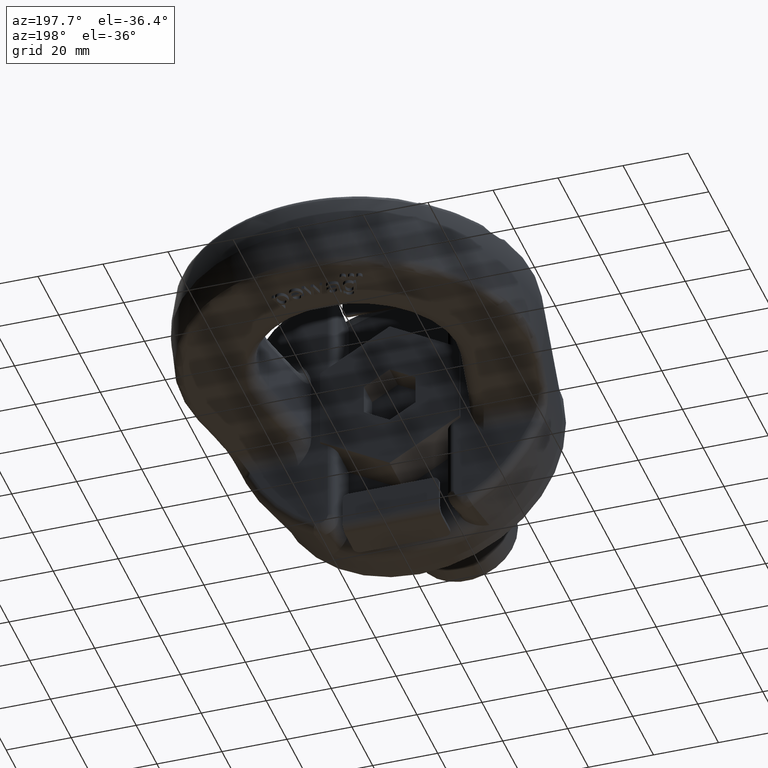
[diagram: clean part render]
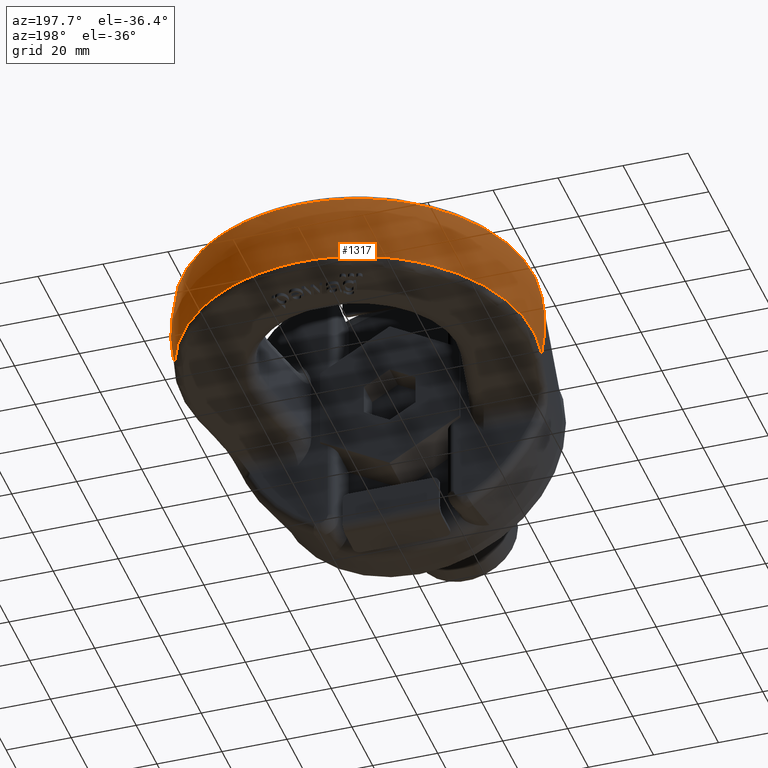
[diagram: same view with one face highlighted and labeled with its STEP entity id]
A machine part, auxiliary view. The second image highlights one B-rep face of the part: STEP entity #1317.
In plain terms, the highlighted spherical surface has radius 55 mm.
Its self-contained STEP definition (entity closure, byte-faithful):
#1089=SPHERICAL_SURFACE('',#5146,55.);
#1096=FACE_OUTER_BOUND('',#1830,.T.);
#1317=ADVANCED_FACE('',(#1096),#1089,.T.);
#1676=CIRCLE('',#5134,53.9571770009979);
#1680=CIRCLE('',#5138,53.9571770009979);
#1685=CIRCLE('',#5144,53.9930498592789);
#1686=CIRCLE('',#5145,53.9930498592789);
#1830=EDGE_LOOP('',(#2831,#2832,#2833,#2834));
#2831=ORIENTED_EDGE('',*,*,#4372,.F.);
#2832=ORIENTED_EDGE('',*,*,#4393,.T.);
#2833=ORIENTED_EDGE('',*,*,#4382,.F.);
#2834=ORIENTED_EDGE('',*,*,#4394,.T.);
#3982=VERTEX_POINT('',#6762);
#3983=VERTEX_POINT('',#6763);
#3992=VERTEX_POINT('',#6815);
#3993=VERTEX_POINT('',#6817);
#4372=EDGE_CURVE('',#3982,#3983,#1676,.T.);
#4382=EDGE_CURVE('',#3992,#3993,#1680,.T.);
#4393=EDGE_CURVE('',#3982,#3993,#1685,.T.);
#4394=EDGE_CURVE('',#3992,#3983,#1686,.T.);
#5134=AXIS2_PLACEMENT_3D('',#6761,#5481,#5482);
#5138=AXIS2_PLACEMENT_3D('',#6816,#5489,#5490);
#5144=AXIS2_PLACEMENT_3D('',#6872,#5501,#5502);
#5145=AXIS2_PLACEMENT_3D('',#6873,#5503,#5504);
#5146=AXIS2_PLACEMENT_3D('',#6874,#5505,#5506);
#5481=DIRECTION('',(-1.11757456888336E-15,-1.,0.));
#5482=DIRECTION('',(1.,-1.15740015705436E-15,0.));
#5489=DIRECTION('',(-1.11757456888336E-15,-1.,0.));
#5490=DIRECTION('',(1.,-1.15740015705436E-15,0.));
#5501=DIRECTION('',(0.,-1.26490253456642E-16,-1.));
#5502=DIRECTION('',(0.,1.,-1.28514575894341E-16));
#5503=DIRECTION('',(-2.34291072916505E-15,-1.26490253456642E-16,1.));
#5504=DIRECTION('',(-2.85359682315669E-31,1.,1.28514575894341E-16));
#5505=DIRECTION('',(-1.05634222892599E-15,-1.,0.));
#5506=DIRECTION('',(1.,-1.13545536609391E-15,0.));
#6761=CARTESIAN_POINT('',(-7.33792883197414E-14,48.3405886615161,0.));
#6762=CARTESIAN_POINT('',(-52.9303918653886,48.3405886615161,10.4761904761905));
#6763=CARTESIAN_POINT('',(-52.9303918653884,48.340588661516,-10.4761904761906));
#6815=CARTESIAN_POINT('',(52.9303918653886,48.3405886615161,-10.4761904761904));
#6816=CARTESIAN_POINT('',(-7.33792883197414E-14,48.3405886615161,0.));
#6817=CARTESIAN_POINT('',(52.9303918653885,48.340588661516,10.4761904761905));
#6872=CARTESIAN_POINT('',(-1.38050658413677E-30,59.,10.4761904761905));
#6873=CARTESIAN_POINT('',(2.45447790674434E-14,59.,-10.4761904761905));
#6874=CARTESIAN_POINT('',(-1.38050658413677E-30,59.,0.));